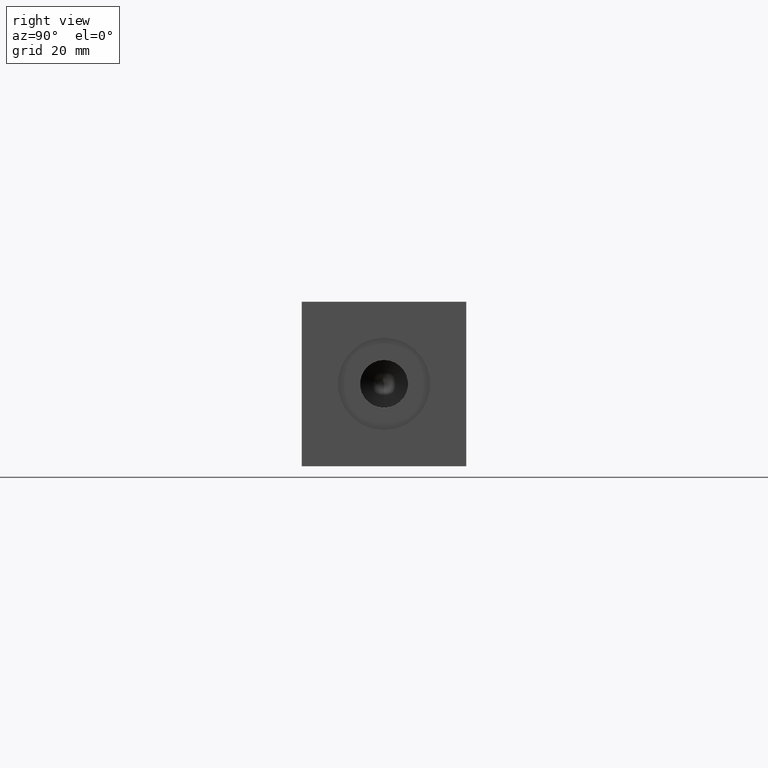
[diagram: clean part render]
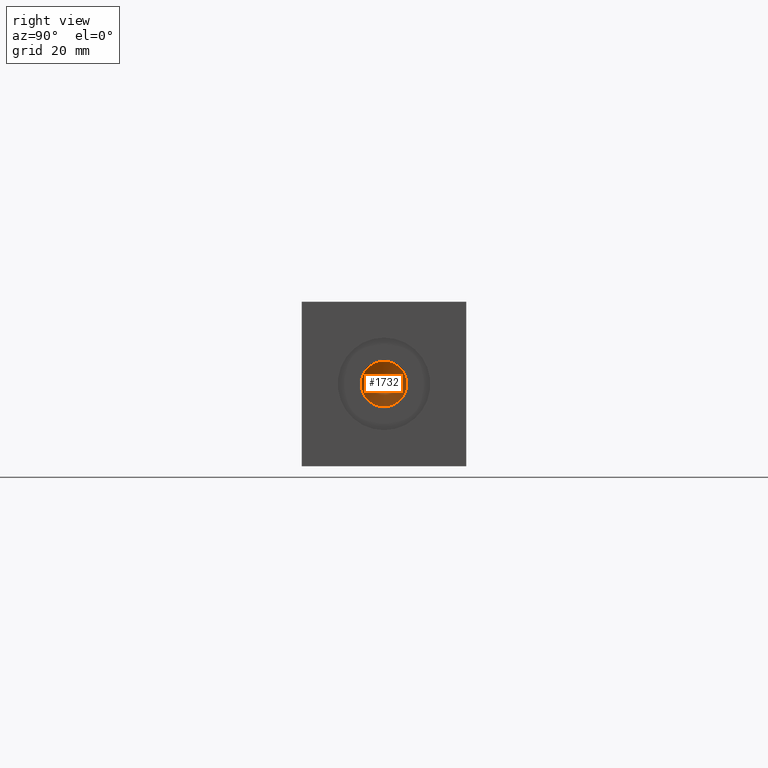
[diagram: same view with one face highlighted and labeled with its STEP entity id]
A machine part, right view. The second image highlights one B-rep face of the part: STEP entity #1732.
In plain terms, the highlighted conical surface has half-angle 60 deg.
Its self-contained STEP definition (entity closure, byte-faithful):
#1716=CARTESIAN_POINT('',(165.560771699999980,22.225000000000001,22.225000000000001));
#1717=DIRECTION('',(1.0,0.0,0.0));
#1718=DIRECTION('',(0.0,0.0,-1.0));
#1719=AXIS2_PLACEMENT_3D('',#1716,#1717,#1718);
#1720=CONICAL_SURFACE('',#1719,3.073400000000000,60.000000242269088);
#1721=CARTESIAN_POINT('',(167.335199999999990,22.225000000000001,16.078200000000002));
#1722=VERTEX_POINT('',#1721);
#1723=CARTESIAN_POINT('',(167.335199999999990,22.225000000000001,22.225000000000001));
#1724=DIRECTION('',(1.0,0.0,0.0));
#1725=DIRECTION('',(0.0,0.0,-1.0));
#1726=AXIS2_PLACEMENT_3D('',#1723,#1724,#1725);
#1727=CIRCLE('',#1726,6.146799999999999);
#1728=EDGE_CURVE('',#1722,#1722,#1727,.T.);
#1729=ORIENTED_EDGE('',*,*,#1728,.T.);
#1730=EDGE_LOOP('',(#1729));
#1731=FACE_OUTER_BOUND('',#1730,.T.);
#1732=ADVANCED_FACE('',(#1731),#1720,.F.);